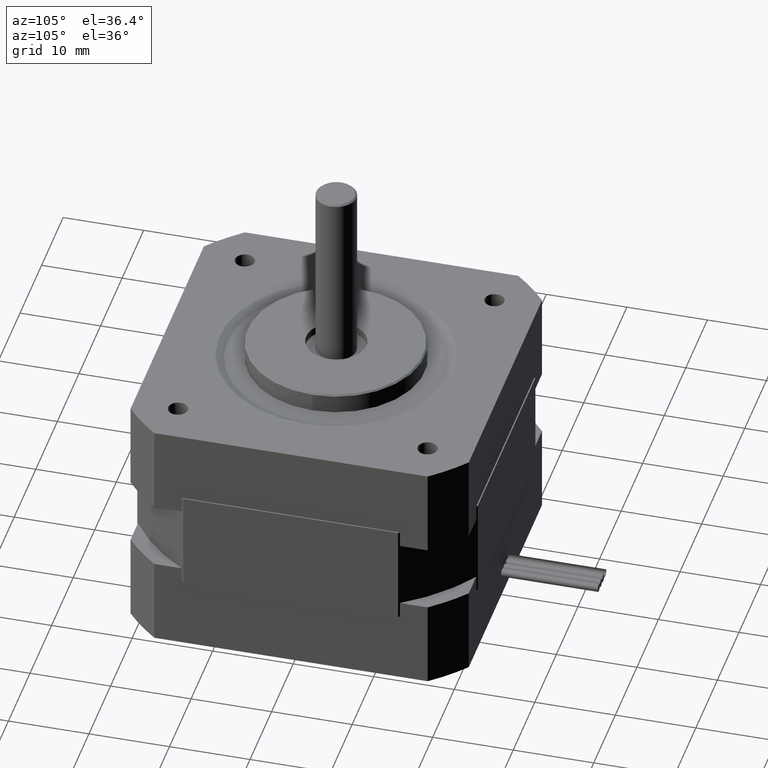
[diagram: clean part render]
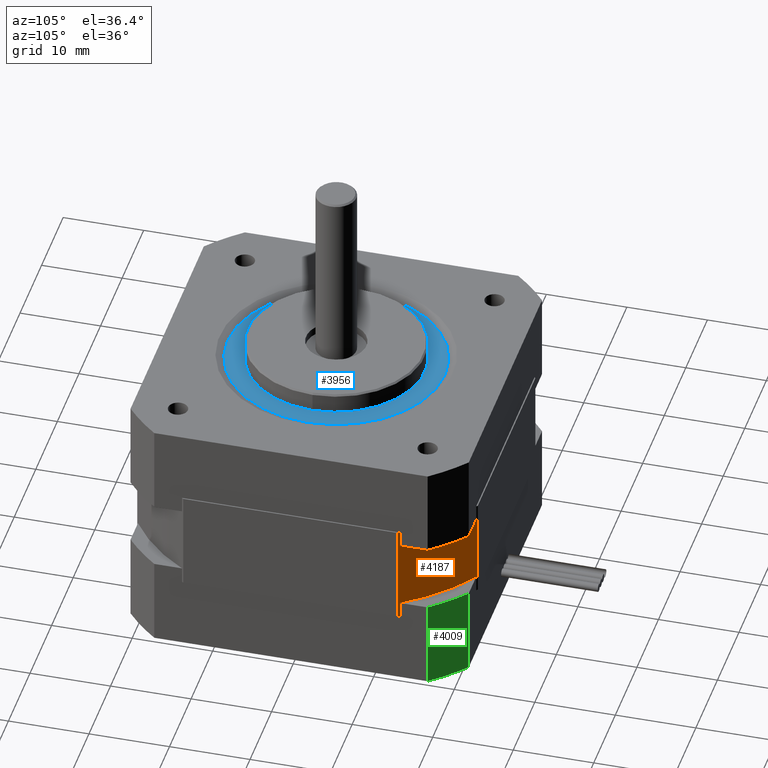
[diagram: same view with three faces highlighted in distinct colors, each labeled with its STEP entity id]
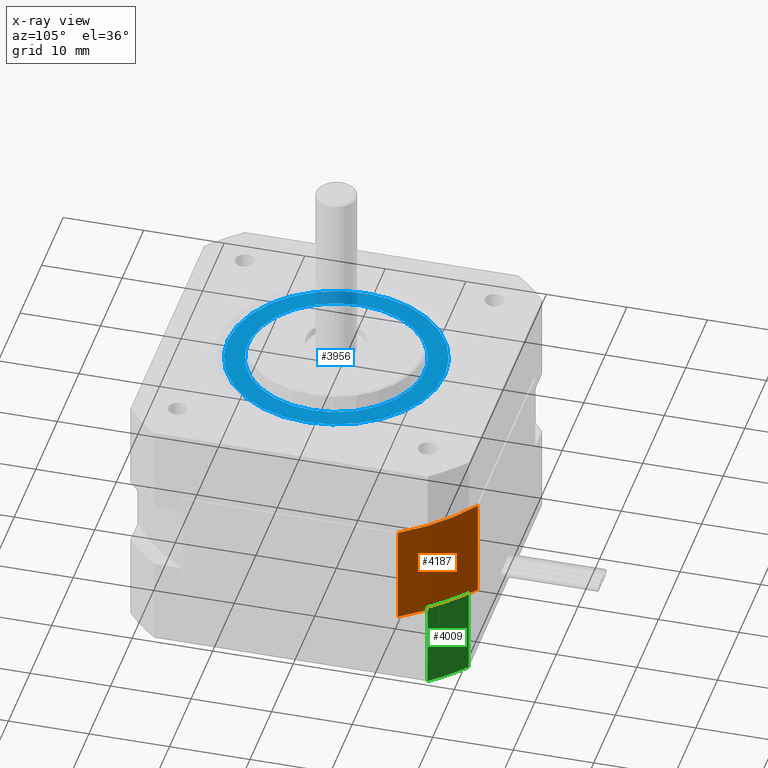
[diagram: x-ray of the same camera — body ghosted, the three highlighted faces saturated]
A machine part, auxiliary view with three faces highlighted in distinct colors.
The next image is the same camera in x-ray (body ghosted, the three faces saturated) — at least one of them is partly hidden behind the body in this view.
Their STEP definitions:

[orange] entity #4187 — the highlighted cylindrical surface (partial cylindrical patch) has radius 25 mm, axis along (0, -0, 1).
#355=LINE('',#7321,#603);
#356=LINE('',#7325,#604);
#603=VECTOR('',#5954,10.);
#604=VECTOR('',#5959,10.);
#864=CYLINDRICAL_SURFACE('',#4705,25.);
#1117=FACE_OUTER_BOUND('',#1451,.T.);
#1451=EDGE_LOOP('',(#3738,#3739,#3740,#3741));
#1679=CIRCLE('',#4692,25.);
#1686=CIRCLE('',#4706,25.);
#2059=VERTEX_POINT('',#7280);
#2060=VERTEX_POINT('',#7281);
#2073=VERTEX_POINT('',#7319);
#2074=VERTEX_POINT('',#7323);
#2611=EDGE_CURVE('',#2059,#2060,#1679,.T.);
#2631=EDGE_CURVE('',#2073,#2060,#355,.T.);
#2632=EDGE_CURVE('',#2073,#2074,#1686,.T.);
#2633=EDGE_CURVE('',#2059,#2074,#356,.T.);
#3738=ORIENTED_EDGE('',*,*,#2632,.T.);
#3739=ORIENTED_EDGE('',*,*,#2633,.F.);
#3740=ORIENTED_EDGE('',*,*,#2611,.T.);
#3741=ORIENTED_EDGE('',*,*,#2631,.F.);
#4187=ADVANCED_FACE('',(#1117),#864,.T.);
#4692=AXIS2_PLACEMENT_3D('',#7282,#5915,#5916);
#4705=AXIS2_PLACEMENT_3D('',#7322,#5955,#5956);
#4706=AXIS2_PLACEMENT_3D('',#7324,#5957,#5958);
#5915=DIRECTION('center_axis',(9.4368957093138E-16,-2.46519032881584E-32,
1.));
#5916=DIRECTION('ref_axis',(-0.845999999999999,-0.533182895449583,7.98361377007946E-16));
#5954=DIRECTION('',(-9.4368957093138E-16,2.46519032881584E-32,-1.));
#5955=DIRECTION('center_axis',(9.4368957093138E-16,-2.46519032881584E-32,
1.));
#5956=DIRECTION('ref_axis',(-0.845999999999999,-0.533182895449583,7.98361377007946E-16));
#5957=DIRECTION('center_axis',(-9.4368957093138E-16,2.46519032881584E-32,
-1.));
#5958=DIRECTION('ref_axis',(-0.845999999999999,-0.533182895449583,7.98361377007946E-16));
#5959=DIRECTION('',(9.4368957093138E-16,-2.46519032881584E-32,1.));
#7280=CARTESIAN_POINT('',(21.15,13.3295723862396,-15.5000000000001));
#7281=CARTESIAN_POINT('',(13.3295723862395,21.15,-15.5000000000001));
#7282=CARTESIAN_POINT('Origin',(-1.57894530783409E-14,4.71844785465692E-15,
-15.5000000000001));
#7319=CARTESIAN_POINT('',(13.3295723862395,21.15,-3.00000000000008));
#7321=CARTESIAN_POINT('',(13.3295723862395,21.15,-9.25000000000008));
#7322=CARTESIAN_POINT('Origin',(-9.89139326001978E-15,4.71844785465692E-15,
-9.25000000000007));
#7323=CARTESIAN_POINT('',(21.15,13.3295723862396,-3.00000000000009));
#7324=CARTESIAN_POINT('Origin',(-3.99333344169866E-15,4.71844785465692E-15,
-3.00000000000007));
#7325=CARTESIAN_POINT('',(21.15,13.3295723862396,-9.25000000000009));

[blue] entity #3956 — the highlighted planar face has unit normal (0, 0, -1).
#618=PLANE('',#4246);
#748=FACE_BOUND('',#1153,.T.);
#886=FACE_OUTER_BOUND('',#1152,.T.);
#1152=EDGE_LOOP('',(#2719));
#1153=EDGE_LOOP('',(#2720));
#1468=CIRCLE('',#4239,13.5);
#1474=CIRCLE('',#4247,11.);
#1724=VERTEX_POINT('',#6070);
#1730=VERTEX_POINT('',#6086);
#2122=EDGE_CURVE('',#1724,#1724,#1468,.T.);
#2130=EDGE_CURVE('',#1730,#1730,#1474,.T.);
#2719=ORIENTED_EDGE('',*,*,#2122,.T.);
#2720=ORIENTED_EDGE('',*,*,#2130,.F.);
#3956=ADVANCED_FACE('',(#886,#748),#618,.F.);
#4239=AXIS2_PLACEMENT_3D('',#6071,#4811,#4812);
#4246=AXIS2_PLACEMENT_3D('',#6085,#4827,#4828);
#4247=AXIS2_PLACEMENT_3D('',#6087,#4829,#4830);
#4811=DIRECTION('center_axis',(-8.74300631892311E-16,-2.59037577520082E-32,
1.));
#4812=DIRECTION('ref_axis',(-1.,-7.54604712049907E-17,-8.74300631892311E-16));
#4827=DIRECTION('center_axis',(8.74300631892311E-16,2.59037577520082E-32,
-1.));
#4828=DIRECTION('ref_axis',(-1.,-7.54604712049907E-17,-8.88178419700125E-16));
#4829=DIRECTION('center_axis',(-8.74300631892311E-16,-2.59037577520082E-32,
1.));
#4830=DIRECTION('ref_axis',(-1.,-7.54604712049907E-17,-8.7430063189231E-16));
#6070=CARTESIAN_POINT('',(13.5,7.40419911531075E-15,5.4999999999999));
#6071=CARTESIAN_POINT('Origin',(-9.42678372192386E-15,4.73220975404338E-15,
5.49999999999989));
#6085=CARTESIAN_POINT('Origin',(-9.42678372192386E-15,4.73220975404338E-15,
5.49999999999989));
#6086=CARTESIAN_POINT('',(11.,6.90938593729828E-15,5.4999999999999));
#6087=CARTESIAN_POINT('Origin',(-9.42678372192386E-15,4.73220975404338E-15,
5.49999999999989));

[green] entity #4009 — the highlighted cylindrical surface (partial cylindrical patch) has radius 27 mm, axis along (-0, -0, -1).
#177=LINE('',#6218,#425);
#190=LINE('',#6295,#438);
#425=VECTOR('',#4980,11.);
#438=VECTOR('',#5073,11.);
#844=CYLINDRICAL_SURFACE('',#4346,27.);
#939=FACE_OUTER_BOUND('',#1237,.T.);
#1237=EDGE_LOOP('',(#2901,#2902,#2903,#2904));
#1504=CIRCLE('',#4314,27.);
#1507=CIRCLE('',#4319,27.);
#1769=VERTEX_POINT('',#6215);
#1770=VERTEX_POINT('',#6217);
#1776=VERTEX_POINT('',#6237);
#1782=VERTEX_POINT('',#6253);
#2188=EDGE_CURVE('',#1770,#1769,#177,.T.);
#2198=EDGE_CURVE('',#1770,#1776,#1504,.T.);
#2207=EDGE_CURVE('',#1769,#1782,#1507,.T.);
#2221=EDGE_CURVE('',#1776,#1782,#190,.T.);
#2901=ORIENTED_EDGE('',*,*,#2207,.T.);
#2902=ORIENTED_EDGE('',*,*,#2221,.F.);
#2903=ORIENTED_EDGE('',*,*,#2198,.F.);
#2904=ORIENTED_EDGE('',*,*,#2188,.T.);
#4009=ADVANCED_FACE('',(#939),#844,.T.);
#4314=AXIS2_PLACEMENT_3D('',#6238,#5001,#5002);
#4319=AXIS2_PLACEMENT_3D('',#6255,#5017,#5018);
#4346=AXIS2_PLACEMENT_3D('',#6294,#5071,#5072);
#4980=DIRECTION('',(-9.034635156321E-16,-9.20284061207292E-21,-1.));
#5001=DIRECTION('center_axis',(9.034635156321E-16,9.20284061207292E-21,
1.));
#5002=DIRECTION('ref_axis',(-0.628539361054709,-0.777777777777778,5.67869538616561E-16));
#5017=DIRECTION('center_axis',(9.034635156321E-16,9.20284061207292E-21,
1.));
#5018=DIRECTION('ref_axis',(-0.628539361054709,-0.777777777777778,5.67869538616561E-16));
#5071=DIRECTION('center_axis',(-9.034635156321E-16,-9.20284061207292E-21,
-1.));
#5072=DIRECTION('ref_axis',(-0.628539361054709,-0.777777777777778,5.67869538616561E-16));
#5073=DIRECTION('',(-9.034635156321E-16,-9.20284061207292E-21,-1.));
#6215=CARTESIAN_POINT('',(21.,16.9705627484772,-24.5));
#6217=CARTESIAN_POINT('',(21.,16.9705627484772,-13.5));
#6218=CARTESIAN_POINT('',(21.,16.9705627484772,-13.5));
#6237=CARTESIAN_POINT('',(16.9705627484771,21.,-13.5));
#6238=CARTESIAN_POINT('Origin',(-1.41415715095995E-14,8.02526056812936E-15,
-13.5));
#6253=CARTESIAN_POINT('',(16.9705627484771,21.,-24.5));
#6255=CARTESIAN_POINT('Origin',(-2.40796701815525E-14,8.02515933688262E-15,
-24.5));
#6294=CARTESIAN_POINT('Origin',(-1.41415715095995E-14,8.02526056812936E-15,
-13.5));
#6295=CARTESIAN_POINT('',(16.9705627484771,21.,-13.5));